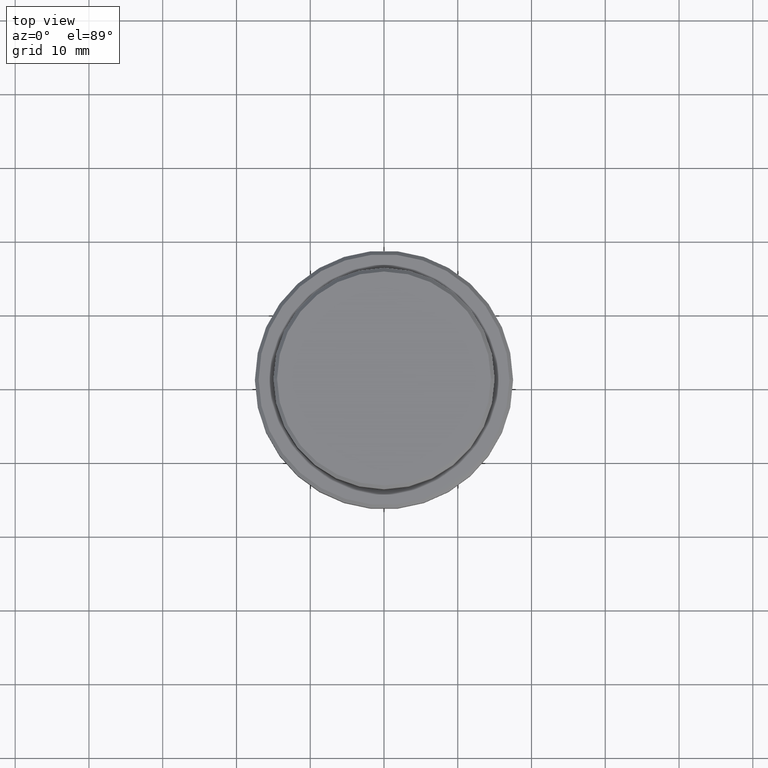
[diagram: clean part render]
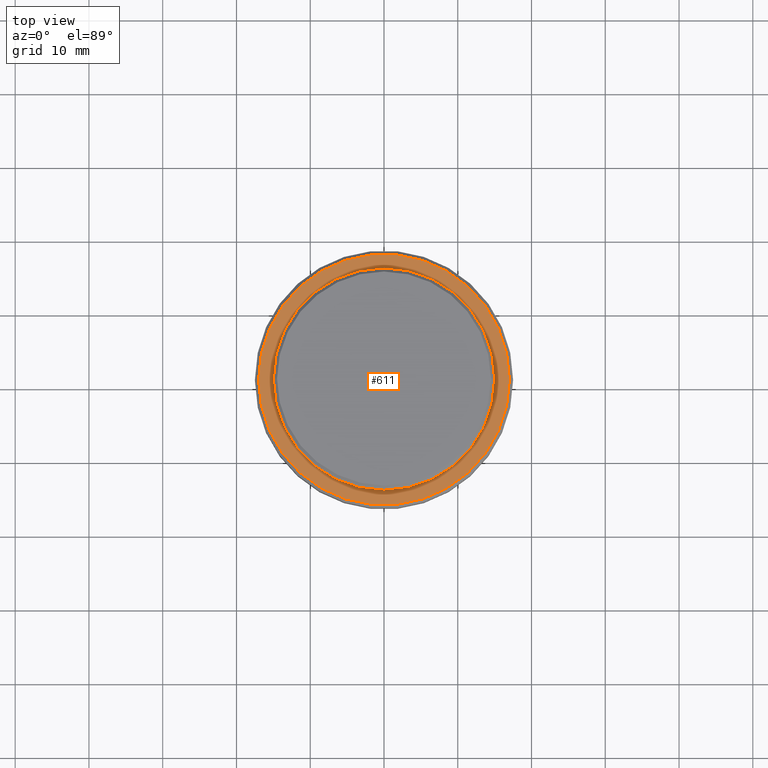
[diagram: same view with one face highlighted and labeled with its STEP entity id]
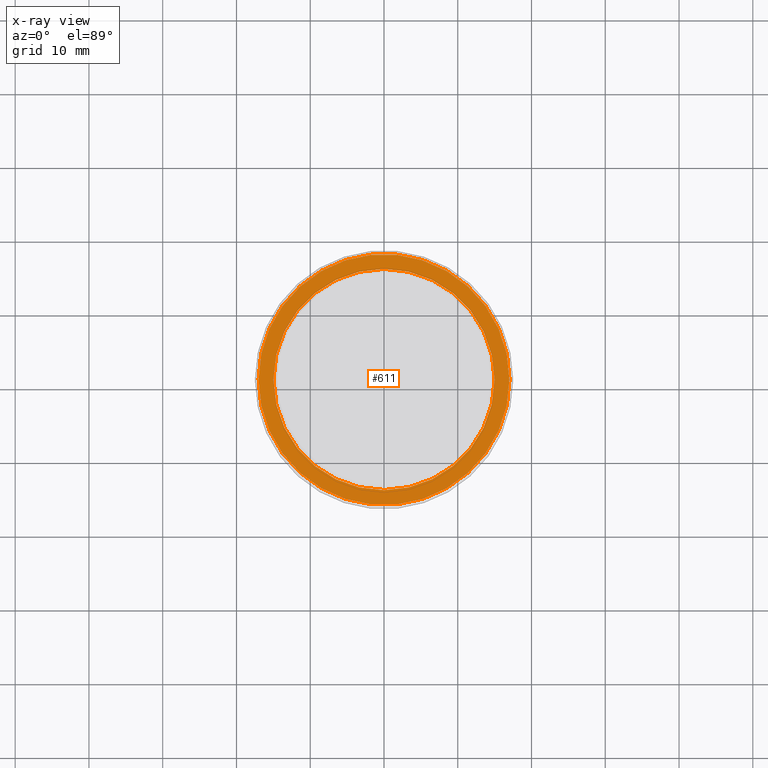
[diagram: x-ray of the same camera — body ghosted, the highlighted face saturated]
A machine part, top view. The second image highlights one B-rep face of the part: STEP entity #611.
The next image is the same camera in x-ray: the body ghosted, the highlighted face saturated — about 0% of this face is hidden behind the body in this view.
In plain terms, the highlighted planar face has unit normal (0, -0, 1).
Its self-contained STEP definition (entity closure, byte-faithful):
#34 = CARTESIAN_POINT ( 'NONE',  ( 17.00000000000001421, 2.112515728529185250E-15, -9.000000000000000000 ) ) ;
#46 = AXIS2_PLACEMENT_3D ( 'NONE', #738, #1167, #1056 ) ;
#63 = DIRECTION ( 'NONE',  ( -0.000000000000000000, -0.000000000000000000, 1.000000000000000000 ) ) ;
#108 = AXIS2_PLACEMENT_3D ( 'NONE', #1169, #637, #1059 ) ;
#123 = EDGE_CURVE ( 'NONE', #518, #1120, #575, .T. ) ;
#136 = EDGE_CURVE ( 'NONE', #1120, #518, #1408, .T. ) ;
#150 = DIRECTION ( 'NONE',  ( 1.000000000000000000, 0.000000000000000000, 0.000000000000000000 ) ) ;
#178 = DIRECTION ( 'NONE',  ( 1.000000000000000000, 0.000000000000000000, 0.000000000000000000 ) ) ;
#196 = ORIENTED_EDGE ( 'NONE', *, *, #856, .T. ) ;
#198 = AXIS2_PLACEMENT_3D ( 'NONE', #482, #703, #178 ) ;
#355 = ORIENTED_EDGE ( 'NONE', *, *, #136, .T. ) ;
#364 = CIRCLE ( 'NONE', #108, 14.99999999999999289 ) ;
#482 = CARTESIAN_POINT ( 'NONE',  ( 0.000000000000000000, 0.000000000000000000, -9.000000000000000000 ) ) ;
#518 = VERTEX_POINT ( 'NONE', #34 ) ;
#575 = CIRCLE ( 'NONE', #1097, 17.00000000000001421 ) ;
#581 = CARTESIAN_POINT ( 'NONE',  ( -14.99999999999999289, 1.836970198721028800E-15, -9.000000000000000000 ) ) ;
#600 = CARTESIAN_POINT ( 'NONE',  ( -17.00000000000001421, 0.000000000000000000, -9.000000000000000000 ) ) ;
#611 = ADVANCED_FACE ( 'NONE', ( #1141, #1267 ), #922, .T. ) ;
#619 = ORIENTED_EDGE ( 'NONE', *, *, #123, .T. ) ;
#623 = CARTESIAN_POINT ( 'NONE',  ( 14.99999999999999289, 0.000000000000000000, -9.000000000000000000 ) ) ;
#631 = VERTEX_POINT ( 'NONE', #623 ) ;
#637 = DIRECTION ( 'NONE',  ( 0.000000000000000000, 0.000000000000000000, -1.000000000000000000 ) ) ;
#668 = EDGE_LOOP ( 'NONE', ( #355, #619 ) ) ;
#703 = DIRECTION ( 'NONE',  ( -0.000000000000000000, -0.000000000000000000, 1.000000000000000000 ) ) ;
#738 = CARTESIAN_POINT ( 'NONE',  ( 0.000000000000000000, 0.000000000000000000, -9.000000000000000000 ) ) ;
#752 = CIRCLE ( 'NONE', #46, 14.99999999999999289 ) ;
#779 = ORIENTED_EDGE ( 'NONE', *, *, #1336, .T. ) ;
#792 = AXIS2_PLACEMENT_3D ( 'NONE', #1022, #937, #1254 ) ;
#856 = EDGE_CURVE ( 'NONE', #934, #631, #364, .T. ) ;
#918 = EDGE_LOOP ( 'NONE', ( #779, #196 ) ) ;
#922 = PLANE ( 'NONE',  #792 ) ;
#934 = VERTEX_POINT ( 'NONE', #581 ) ;
#937 = DIRECTION ( 'NONE',  ( 0.000000000000000000, -0.000000000000000000, 1.000000000000000000 ) ) ;
#1022 = CARTESIAN_POINT ( 'NONE',  ( 0.000000000000000000, 14.49999999999999467, -9.000000000000000000 ) ) ;
#1056 = DIRECTION ( 'NONE',  ( 1.000000000000000000, 0.000000000000000000, 0.000000000000000000 ) ) ;
#1059 = DIRECTION ( 'NONE',  ( 1.000000000000000000, 0.000000000000000000, 0.000000000000000000 ) ) ;
#1097 = AXIS2_PLACEMENT_3D ( 'NONE', #1255, #63, #150 ) ;
#1120 = VERTEX_POINT ( 'NONE', #600 ) ;
#1141 = FACE_OUTER_BOUND ( 'NONE', #668, .T. ) ;
#1167 = DIRECTION ( 'NONE',  ( 0.000000000000000000, 0.000000000000000000, -1.000000000000000000 ) ) ;
#1169 = CARTESIAN_POINT ( 'NONE',  ( 0.000000000000000000, 0.000000000000000000, -9.000000000000000000 ) ) ;
#1254 = DIRECTION ( 'NONE',  ( 1.000000000000000000, 0.000000000000000000, 0.000000000000000000 ) ) ;
#1255 = CARTESIAN_POINT ( 'NONE',  ( 0.000000000000000000, 0.000000000000000000, -9.000000000000000000 ) ) ;
#1267 = FACE_BOUND ( 'NONE', #918, .T. ) ;
#1336 = EDGE_CURVE ( 'NONE', #631, #934, #752, .T. ) ;
#1408 = CIRCLE ( 'NONE', #198, 17.00000000000001421 ) ;